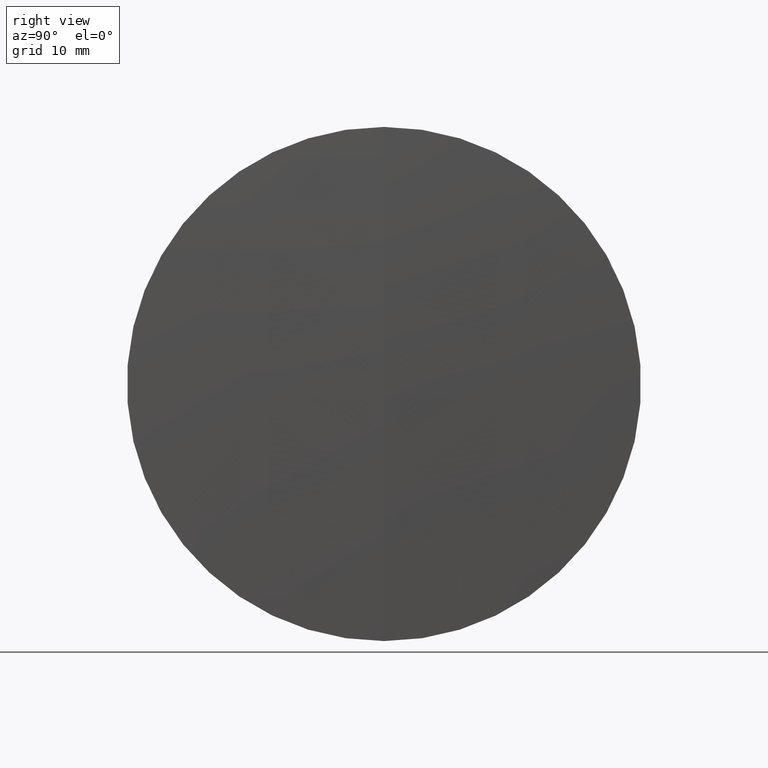
[diagram: clean part render]
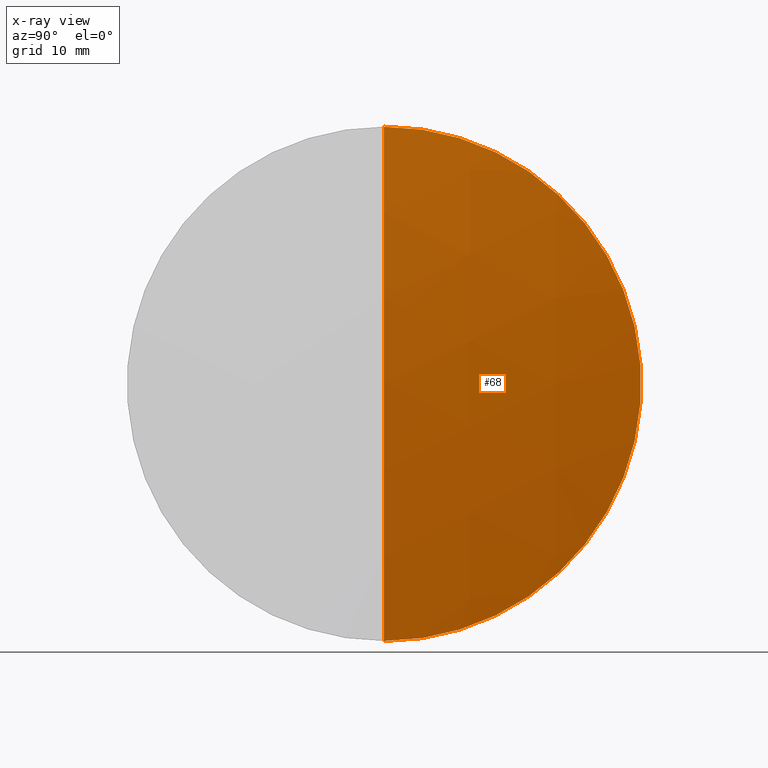
[diagram: x-ray — body ghosted, one internal face saturated and labeled with its STEP entity id]
A machine part, right view, then the same camera in x-ray: the body is ghosted and one INTERNAL B-rep face — a face not visible from any outside direction — is saturated and labeled: STEP entity #68.
In plain terms, the highlighted spherical surface has radius 162.24 mm.
Its self-contained STEP definition (entity closure, byte-faithful):
#4 = EDGE_CURVE ( 'NONE', #42, #206, #63, .T. ) ;
#10 = EDGE_CURVE ( 'NONE', #42, #326, #14, .T. ) ;
#14 = CIRCLE ( 'NONE', #159, 162.2400000000000100 ) ;
#17 = DIRECTION ( 'NONE',  ( 0.0000000000000000000, 0.0000000000000000000, 1.000000000000000000 ) ) ;
#20 = DIRECTION ( 'NONE',  ( 0.0000000000000000000, -1.000000000000000000, 0.0000000000000000000 ) ) ;
#42 = VERTEX_POINT ( 'NONE', #147 ) ;
#45 = DIRECTION ( 'NONE',  ( 0.0000000000000000000, 1.000000000000000000, 0.0000000000000000000 ) ) ;
#51 = DIRECTION ( 'NONE',  ( 0.0000000000000000000, -1.224646799147353200E-016, 1.000000000000000000 ) ) ;
#59 = ORIENTED_EDGE ( 'NONE', *, *, #4, .T. ) ;
#63 = CIRCLE ( 'NONE', #144, 162.2400000000000100 ) ;
#68 = ADVANCED_FACE ( 'NONE', ( #247 ), #81, .T. ) ;
#78 = DIRECTION ( 'NONE',  ( -1.000000000000000000, -0.0000000000000000000, -0.0000000000000000000 ) ) ;
#81 = SPHERICAL_SURFACE ( 'NONE', #133, 162.2400000000000100 ) ;
#85 = CARTESIAN_POINT ( 'NONE',  ( 102.0910746197044700, 0.0000000000000000000, 2.604248106336167600E-013 ) ) ;
#101 = CIRCLE ( 'NONE', #110, 25.00000000000008500 ) ;
#110 = AXIS2_PLACEMENT_3D ( 'NONE', #117, #78, #153 ) ;
#117 = CARTESIAN_POINT ( 'NONE',  ( 262.3933440983366300, 0.0000000000000000000, 0.0000000000000000000 ) ) ;
#133 = AXIS2_PLACEMENT_3D ( 'NONE', #189, #45, #17 ) ;
#144 = AXIS2_PLACEMENT_3D ( 'NONE', #85, #306, #51 ) ;
#147 = CARTESIAN_POINT ( 'NONE',  ( 264.3310746197044500, 0.0000000000000000000, 2.703591454683000400E-013 ) ) ;
#153 = DIRECTION ( 'NONE',  ( 0.0000000000000000000, 0.0000000000000000000, 1.000000000000000000 ) ) ;
#159 = AXIS2_PLACEMENT_3D ( 'NONE', #246, #20, #204 ) ;
#189 = CARTESIAN_POINT ( 'NONE',  ( 102.0910746197044700, 0.0000000000000000000, 2.604248106336167600E-013 ) ) ;
#204 = DIRECTION ( 'NONE',  ( 0.0000000000000000000, 0.0000000000000000000, -1.000000000000000000 ) ) ;
#206 = VERTEX_POINT ( 'NONE', #292 ) ;
#221 = CARTESIAN_POINT ( 'NONE',  ( 262.3933440983366300, 0.0000000000000000000, 25.00000000000008500 ) ) ;
#242 = EDGE_LOOP ( 'NONE', ( #341, #59, #251 ) ) ;
#246 = CARTESIAN_POINT ( 'NONE',  ( 102.0910746197044700, 0.0000000000000000000, 2.604248106336167600E-013 ) ) ;
#247 = FACE_OUTER_BOUND ( 'NONE', #242, .T. ) ;
#251 = ORIENTED_EDGE ( 'NONE', *, *, #335, .F. ) ;
#292 = CARTESIAN_POINT ( 'NONE',  ( 262.3933440983366300, 3.061616997868393700E-015, -25.00000000000008500 ) ) ;
#306 = DIRECTION ( 'NONE',  ( -0.0000000000000000000, 1.000000000000000000, 1.224646799147353200E-016 ) ) ;
#326 = VERTEX_POINT ( 'NONE', #221 ) ;
#335 = EDGE_CURVE ( 'NONE', #326, #206, #101, .T. ) ;
#341 = ORIENTED_EDGE ( 'NONE', *, *, #10, .F. ) ;